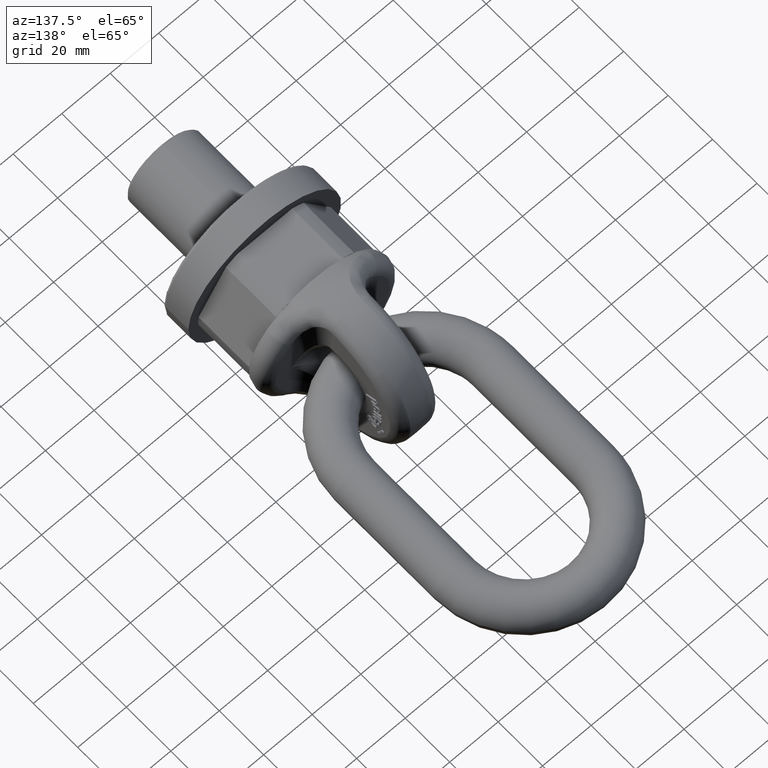
[diagram: clean part render]
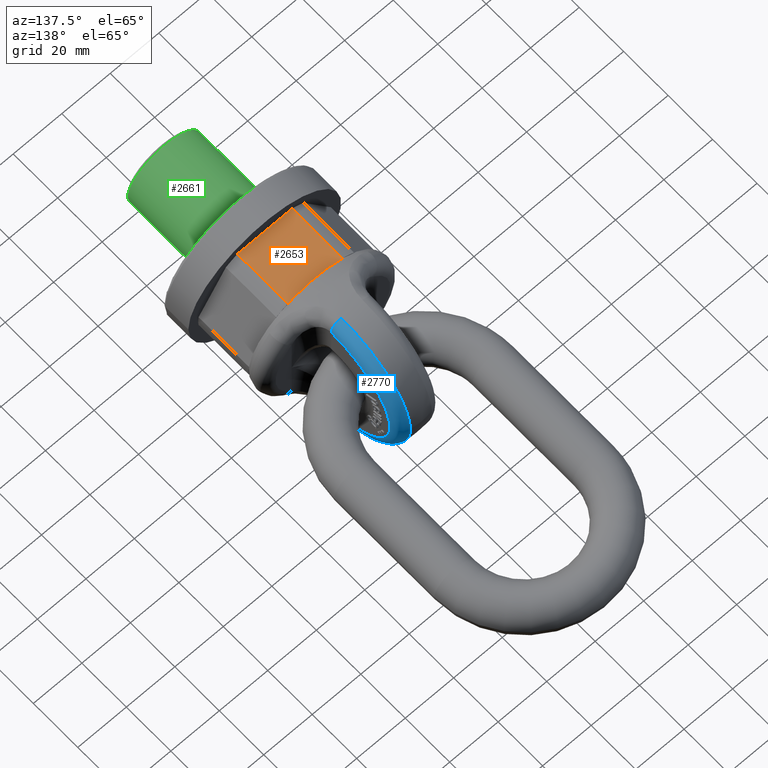
[diagram: same view with three faces highlighted in distinct colors, each labeled with its STEP entity id]
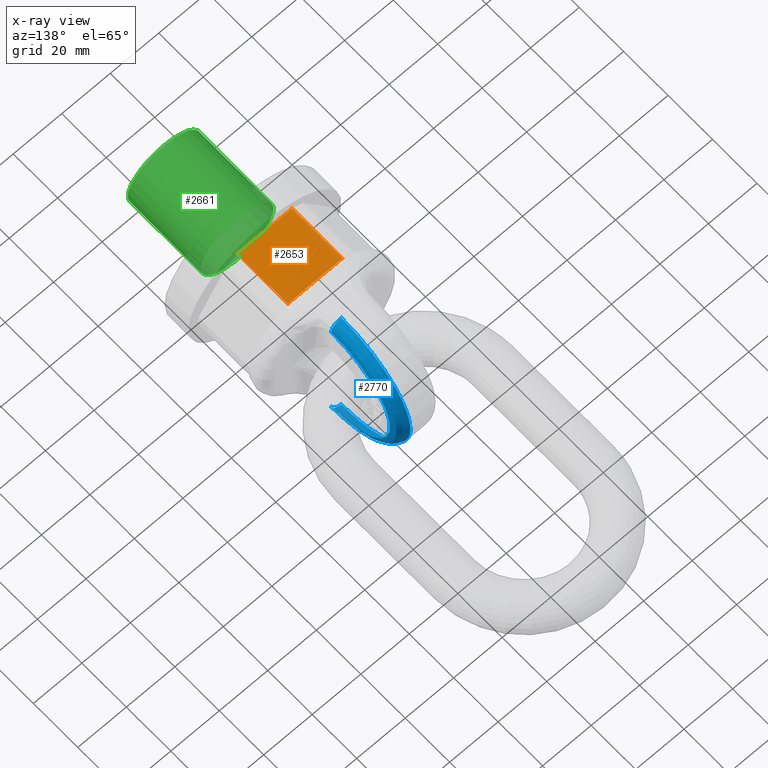
[diagram: x-ray of the same camera — body ghosted, the three highlighted faces saturated]
A machine part, auxiliary view with three faces highlighted in distinct colors.
The next image is the same camera in x-ray (body ghosted, the three faces saturated) — at least one of them is partly hidden behind the body in this view.
Their STEP definitions:

[orange] entity #2653 — the highlighted planar face has unit normal (0, 0, 1).
#1811=FACE_OUTER_BOUND('',#3076,.T.);
#2042=LINE('',#6582,#2298);
#2062=LINE('',#6635,#2318);
#2063=LINE('',#6637,#2319);
#2064=LINE('',#6639,#2320);
#2298=VECTOR('',#5822,1.);
#2318=VECTOR('',#5868,1.);
#2319=VECTOR('',#5869,1.);
#2320=VECTOR('',#5870,1.);
#2653=ADVANCED_FACE('',(#1811),#2895,.T.);
#2895=PLANE('',#5622);
#3076=EDGE_LOOP('',(#3388,#3389,#3390,#3391));
#3388=ORIENTED_EDGE('',*,*,#4972,.F.);
#3389=ORIENTED_EDGE('',*,*,#4946,.T.);
#3390=ORIENTED_EDGE('',*,*,#4973,.F.);
#3391=ORIENTED_EDGE('',*,*,#4974,.T.);
#4548=VERTEX_POINT('',#6581);
#4549=VERTEX_POINT('',#6583);
#4569=VERTEX_POINT('',#6636);
#4570=VERTEX_POINT('',#6638);
#4946=EDGE_CURVE('',#4549,#4548,#2042,.T.);
#4972=EDGE_CURVE('',#4549,#4569,#2062,.T.);
#4973=EDGE_CURVE('',#4570,#4548,#2063,.T.);
#4974=EDGE_CURVE('',#4570,#4569,#2064,.T.);
#5622=AXIS2_PLACEMENT_3D('',#6640,#5871,#5872);
#5822=DIRECTION('',(1.,4.23223526175924E-17,0.));
#5868=DIRECTION('',(-2.4492935982947E-17,1.,0.));
#5869=DIRECTION('',(2.4492935982947E-17,-1.,0.));
#5870=DIRECTION('',(-1.,0.,0.));
#5871=DIRECTION('',(0.,0.,1.));
#5872=DIRECTION('',(1.,0.,0.));
#6581=CARTESIAN_POINT('',(11.2731243820572,11.3333333333333,25.));
#6582=CARTESIAN_POINT('',(31.5,11.3333333333333,25.));
#6583=CARTESIAN_POINT('',(-11.2731243820572,11.3333333333333,25.));
#6635=CARTESIAN_POINT('',(-11.2731243820572,-2.76111913817527E-16,25.));
#6636=CARTESIAN_POINT('',(-11.2731243820572,34.,25.));
#6637=CARTESIAN_POINT('',(11.2731243820572,2.76111913817527E-16,25.));
#6638=CARTESIAN_POINT('',(11.2731243820572,34.,25.));
#6639=CARTESIAN_POINT('',(14.4337567297406,34.,25.));
#6640=CARTESIAN_POINT('',(14.4337567297406,34.,25.));

[blue] entity #2770 — the highlighted toroidal blend (fillet) surface has major radius 26.4858 mm and minor (blend) radius 4.75 mm.
#1798=TOROIDAL_SURFACE('',#5722,26.4858452762981,4.75);
#1914=FACE_OUTER_BOUND('',#3214,.T.);
#2770=ADVANCED_FACE('',(#1914),#1798,.T.);
#3214=EDGE_LOOP('',(#3972,#3973,#3974,#3975));
#3972=ORIENTED_EDGE('',*,*,#5261,.T.);
#3973=ORIENTED_EDGE('',*,*,#5072,.F.);
#3974=ORIENTED_EDGE('',*,*,#5264,.F.);
#3975=ORIENTED_EDGE('',*,*,#5011,.F.);
#4598=VERTEX_POINT('',#6789);
#4601=VERTEX_POINT('',#6794);
#4659=VERTEX_POINT('',#7045);
#4660=VERTEX_POINT('',#7047);
#5011=EDGE_CURVE('',#4601,#4598,#5560,.T.);
#5072=EDGE_CURVE('',#4659,#4660,#5564,.T.);
#5261=EDGE_CURVE('',#4601,#4660,#5574,.T.);
#5264=EDGE_CURVE('',#4598,#4659,#5577,.T.);
#5560=CIRCLE('',#5648,26.4858452762981);
#5564=CIRCLE('',#5655,31.188939297323);
#5574=CIRCLE('',#5718,4.75);
#5577=CIRCLE('',#5721,4.75);
#5648=AXIS2_PLACEMENT_3D('',#6795,#5931,#5932);
#5655=AXIS2_PLACEMENT_3D('',#7046,#5973,#5974);
#5718=AXIS2_PLACEMENT_3D('',#8096,#6225,#6226);
#5721=AXIS2_PLACEMENT_3D('',#8135,#6231,#6232);
#5722=AXIS2_PLACEMENT_3D('',#8136,#6233,#6234);
#5931=DIRECTION('',(1.,-3.03576608295941E-16,0.));
#5932=DIRECTION('',(3.27481237219413E-16,1.,0.));
#5973=DIRECTION('',(-1.,3.03576608295941E-16,0.));
#5974=DIRECTION('',(-3.05909060481944E-16,-1.,0.));
#6225=DIRECTION('',(0.,1.,0.));
#6226=DIRECTION('',(0.,0.,1.));
#6231=DIRECTION('',(0.,-1.,0.));
#6232=DIRECTION('',(0.,0.,-1.));
#6233=DIRECTION('',(1.,-3.03576608295941E-16,0.));
#6234=DIRECTION('',(3.05449685560845E-16,1.,0.));
#6789=CARTESIAN_POINT('',(8.49999999999999,50.5,26.4858452762981));
#6794=CARTESIAN_POINT('',(8.49999999999999,50.5,-26.4858452762981));
#6795=CARTESIAN_POINT('',(8.5,50.5,0.));
#7045=CARTESIAN_POINT('',(4.41588785046729,50.5,31.188939297323));
#7046=CARTESIAN_POINT('',(4.41588785046729,50.5,0.));
#7047=CARTESIAN_POINT('',(4.41588785046729,50.5,-31.188939297323));
#8096=CARTESIAN_POINT('',(3.75,50.5,-26.4858452762981));
#8135=CARTESIAN_POINT('',(3.75,50.5,26.4858452762981));
#8136=CARTESIAN_POINT('',(3.75,50.5,0.));

[green] entity #2661 — the highlighted cylindrical surface (bore or boss wall) has radius 15 mm, axis along (0, 1, 0).
#2027=CYLINDRICAL_SURFACE('',#5638,15.);
#2661=ADVANCED_FACE('',(#2999,#3000),#2027,.T.);
#2999=FACE_BOUND('',#3084,.T.);
#3000=FACE_BOUND('',#3085,.T.);
#3084=EDGE_LOOP('',(#3428));
#3085=EDGE_LOOP('',(#3429));
#3428=ORIENTED_EDGE('',*,*,#4981,.T.);
#3429=ORIENTED_EDGE('',*,*,#4982,.T.);
#4571=VERTEX_POINT('',#6655);
#4572=VERTEX_POINT('',#6657);
#4981=EDGE_CURVE('',#4571,#4571,#5553,.T.);
#4982=EDGE_CURVE('',#4572,#4572,#5554,.T.);
#5553=CIRCLE('',#5636,15.);
#5554=CIRCLE('',#5637,15.);
#5636=AXIS2_PLACEMENT_3D('',#6654,#5899,#5900);
#5637=AXIS2_PLACEMENT_3D('',#6656,#5901,#5902);
#5638=AXIS2_PLACEMENT_3D('',#6658,#5903,#5904);
#5899=DIRECTION('',(4.23223526175924E-17,-1.,0.));
#5900=DIRECTION('',(1.,4.33680868994202E-17,0.));
#5901=DIRECTION('',(0.,1.,0.));
#5902=DIRECTION('',(0.,0.,1.));
#5903=DIRECTION('',(0.,1.,0.));
#5904=DIRECTION('',(0.,0.,1.));
#6654=CARTESIAN_POINT('',(0.,-1.,0.));
#6655=CARTESIAN_POINT('',(15.,-1.,0.));
#6656=CARTESIAN_POINT('',(0.,-34.,0.));
#6657=CARTESIAN_POINT('',(0.,-34.,15.));
#6658=CARTESIAN_POINT('',(0.,-35.,0.));